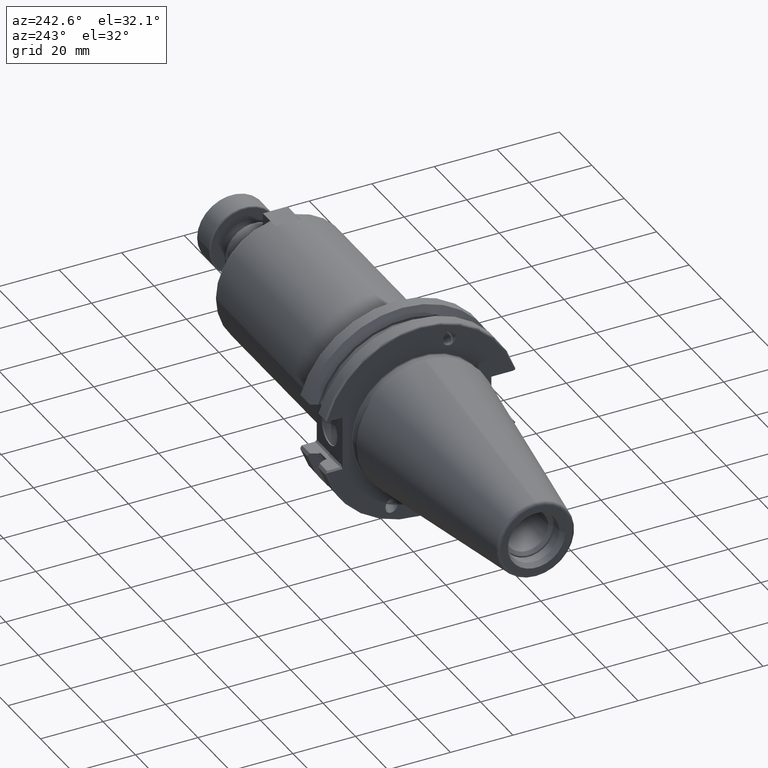
[diagram: clean part render]
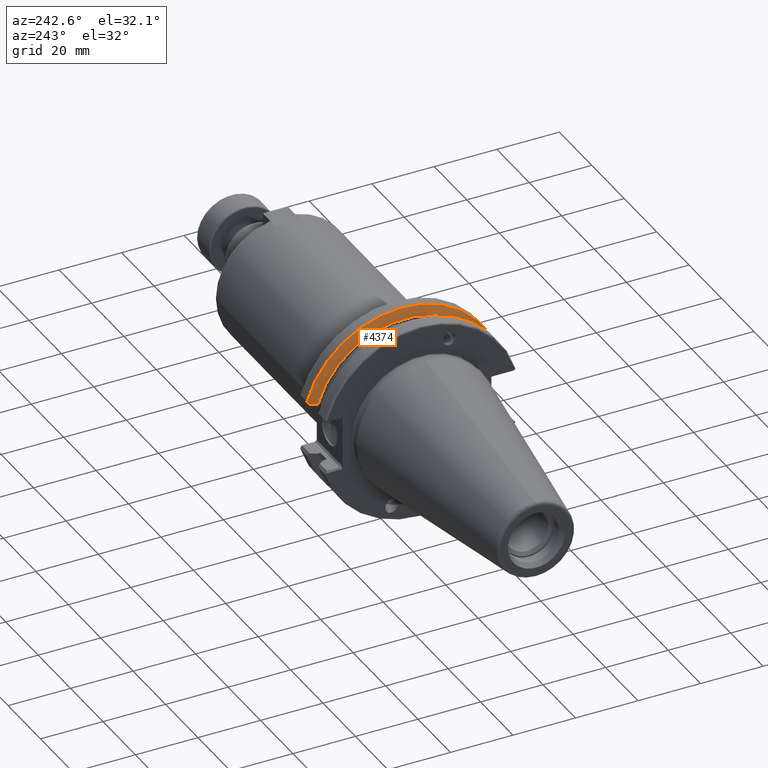
[diagram: same view with one face highlighted and labeled with its STEP entity id]
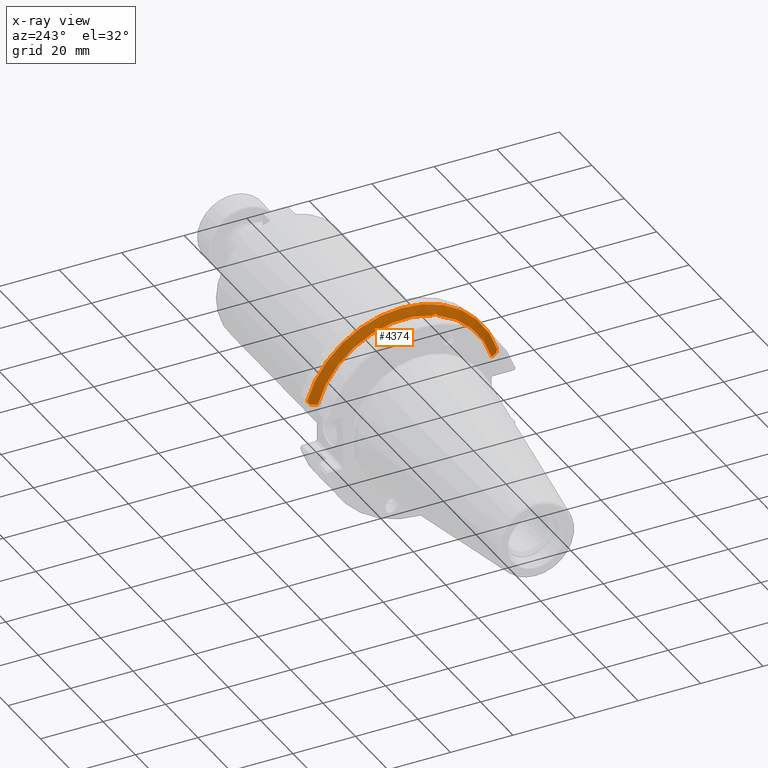
[diagram: x-ray of the same camera — body ghosted, the highlighted face saturated]
A machine part, auxiliary view. The second image highlights one B-rep face of the part: STEP entity #4374.
The next image is the same camera in x-ray: the body ghosted, the highlighted face saturated — about 0% of this face is hidden behind the body in this view.
In plain terms, the highlighted conical surface has half-angle 60 deg.
Its self-contained STEP definition (entity closure, byte-faithful):
#1447=CARTESIAN_POINT('',(5.138503937008E-1,-3.581807719874E-1,
1.082607295565E0));
#1448=CARTESIAN_POINT('',(5.152023489081E-1,-3.618593761562E-1,
1.083856717456E0));
#1449=CARTESIAN_POINT('',(5.175127060876E-1,-3.690747423263E-1,
1.085657546070E0));
#1450=CARTESIAN_POINT('',(5.198054750627E-1,-3.792342131984E-1,
1.086357697339E0));
#1451=CARTESIAN_POINT('',(5.210019072345E-1,-3.888108001297E-1,
1.085168477998E0));
#1452=CARTESIAN_POINT('',(5.211165984197E-1,-3.974660836111E-1,
1.082238396118E0));
#1453=CARTESIAN_POINT('',(5.203165297109E-1,-4.049318023961E-1,
1.077985357403E0));
#1454=CARTESIAN_POINT('',(5.187669004976E-1,-4.114202140619E-1,
1.072650529643E0));
#1455=CARTESIAN_POINT('',(5.165557526184E-1,-4.170342531568E-1,
1.066367698244E0));
#1456=CARTESIAN_POINT('',(5.147943210808E-1,-4.200974010668E-1,
1.061878638779E0));
#1457=CARTESIAN_POINT('',(5.138503937008E-1,-4.215041657325E-1,
1.059559465109E0));
#1459=CARTESIAN_POINT('',(5.138503937008E-1,0.E0,0.E0));
#1460=DIRECTION('',(-1.E0,0.E0,0.E0));
#1461=DIRECTION('',(0.E0,-3.141052095374E-1,9.493881805360E-1));
#1462=AXIS2_PLACEMENT_3D('',#1459,#1460,#1461);
#1464=CARTESIAN_POINT('',(5.568724755720E-1,1.171265069796E0,
3.224409448819E-1));
#1465=CARTESIAN_POINT('',(5.519911533521E-1,1.162495847418E0,
3.224409448819E-1));
#1466=CARTESIAN_POINT('',(5.422957468916E-1,1.145064320097E0,
3.224409448819E-1));
#1467=CARTESIAN_POINT('',(5.279550499052E-1,1.119237932591E0,
3.224409448819E-1));
#1468=CARTESIAN_POINT('',(5.185293952008E-1,1.102233269689E0,
3.224409448819E-1));
#1469=CARTESIAN_POINT('',(5.138503937008E-1,1.093784192104E0,
3.224409448819E-1));
#1471=CARTESIAN_POINT('',(5.771735840551E-1,1.197670401482E0,
3.578904991948E-1));
#1472=CARTESIAN_POINT('',(5.737365059337E-1,1.193236042193E0,
3.519373052589E-1));
#1473=CARTESIAN_POINT('',(5.669156042159E-1,1.184400879147E0,
3.400759661938E-1));
#1474=CARTESIAN_POINT('',(5.602021249643E-1,1.175632572400E0,
3.283043827146E-1));
#1475=CARTESIAN_POINT('',(5.568724755720E-1,1.171265069796E0,
3.224409448819E-1));
#1477=CARTESIAN_POINT('',(5.771735840551E-1,0.E0,0.E0));
#1478=DIRECTION('',(1.E0,0.E0,0.E0));
#1479=DIRECTION('',(0.E0,9.581363211856E-1,2.863123993559E-1));
#1480=AXIS2_PLACEMENT_3D('',#1477,#1478,#1479);
#1482=CARTESIAN_POINT('',(5.568724755720E-1,-1.171265069796E0,
3.224409448819E-1));
#1483=CARTESIAN_POINT('',(5.601806936951E-1,-1.175604460995E0,
3.282666427306E-1));
#1484=CARTESIAN_POINT('',(5.668724381452E-1,-1.184344738584E0,
3.400005966455E-1));
#1485=CARTESIAN_POINT('',(5.737147794958E-1,-1.193208011747E0,
3.518996739647E-1));
#1486=CARTESIAN_POINT('',(5.771735840551E-1,-1.197670401482E0,
3.578904991948E-1));
#1488=CARTESIAN_POINT('',(5.138503937008E-1,-1.093784192104E0,
3.224409448819E-1));
#1489=CARTESIAN_POINT('',(5.185279044242E-1,-1.102230577728E0,
3.224409448819E-1));
#1490=CARTESIAN_POINT('',(5.279515669858E-1,-1.119231653199E0,
3.224409448819E-1));
#1491=CARTESIAN_POINT('',(5.422922359125E-1,-1.145058004023E0,
3.224409448819E-1));
#1492=CARTESIAN_POINT('',(5.519896469594E-1,-1.162493141206E0,
3.224409448819E-1));
#1493=CARTESIAN_POINT('',(5.568724755720E-1,-1.171265069796E0,
3.224409448819E-1));
#1495=CARTESIAN_POINT('',(5.138503937008E-1,0.E0,0.E0));
#1496=DIRECTION('',(-1.E0,0.E0,0.E0));
#1497=DIRECTION('',(0.E0,-9.591897156931E-1,2.827633096930E-1));
#1498=AXIS2_PLACEMENT_3D('',#1495,#1496,#1497);
#2196=CARTESIAN_POINT('',(5.138503937008E-1,1.093784192104E0,
3.224409448819E-1));
#2197=VERTEX_POINT('',#2196);
#2212=CARTESIAN_POINT('',(5.138503937008E-1,-1.093784192104E0,
3.224409448819E-1));
#2213=VERTEX_POINT('',#2212);
#2218=VERTEX_POINT('',#1471);
#2219=VERTEX_POINT('',#1475);
#2228=VERTEX_POINT('',#1482);
#2229=VERTEX_POINT('',#1486);
#2448=CARTESIAN_POINT('',(5.138503937008E-1,-4.215041657325E-1,
1.059559465109E0));
#2449=VERTEX_POINT('',#2448);
#2450=CARTESIAN_POINT('',(5.138503937008E-1,-3.581807719874E-1,
1.082607295565E0));
#2451=VERTEX_POINT('',#2450);
#4356=CARTESIAN_POINT('',(5.455119888780E-1,0.E0,0.E0));
#4357=DIRECTION('',(1.E0,0.E0,0.E0));
#4358=DIRECTION('',(0.E0,0.E0,1.E0));
#4359=AXIS2_PLACEMENT_3D('',#4356,#4357,#4358);
#4360=CONICAL_SURFACE('',#4359,1.195160508504E0,6.E1);
#4361=ORIENTED_EDGE('',*,*,#3093,.F.);
#4363=ORIENTED_EDGE('',*,*,#4362,.T.);
#4364=ORIENTED_EDGE('',*,*,#4270,.F.);
#4365=ORIENTED_EDGE('',*,*,#4296,.F.);
#4367=ORIENTED_EDGE('',*,*,#4366,.T.);
#4368=ORIENTED_EDGE('',*,*,#4323,.F.);
#4369=ORIENTED_EDGE('',*,*,#4066,.F.);
#4371=ORIENTED_EDGE('',*,*,#4370,.T.);
#4372=EDGE_LOOP('',(#4361,#4363,#4364,#4365,#4367,#4368,#4369,#4371));
#4373=FACE_OUTER_BOUND('',#4372,.F.);
#4374=ADVANCED_FACE('',(#4373),#4360,.T.);
#1458=B_SPLINE_CURVE_WITH_KNOTS('',3,(#1447,#1448,#1449,#1450,#1451,#1452,#1453,
#1454,#1455,#1456,#1457),.UNSPECIFIED.,.F.,.F.,(4,1,1,1,1,1,1,1,4),(0.E0,
1.25E-1,2.5E-1,3.75E-1,5.E-1,6.25E-1,7.5E-1,8.75E-1,1.E0),.UNSPECIFIED.);
#1463=CIRCLE('',#1462,1.140321017009E0);
#1470=B_SPLINE_CURVE_WITH_KNOTS('',3,(#1464,#1465,#1466,#1467,#1468,#1469),
.UNSPECIFIED.,.F.,.F.,(4,1,1,4),(0.E0,3.333333333333E-1,6.666666666667E-1,1.E0),
.UNSPECIFIED.);
#1476=B_SPLINE_CURVE_WITH_KNOTS('',3,(#1471,#1472,#1473,#1474,#1475),
.UNSPECIFIED.,.F.,.F.,(4,1,4),(0.E0,5.E-1,1.E0),.UNSPECIFIED.);
#1481=CIRCLE('',#1480,1.25E0);
#1487=B_SPLINE_CURVE_WITH_KNOTS('',3,(#1482,#1483,#1484,#1485,#1486),
.UNSPECIFIED.,.F.,.F.,(4,1,4),(0.E0,5.E-1,1.E0),.UNSPECIFIED.);
#1494=B_SPLINE_CURVE_WITH_KNOTS('',3,(#1488,#1489,#1490,#1491,#1492,#1493),
.UNSPECIFIED.,.F.,.F.,(4,1,1,4),(0.E0,3.333333333333E-1,6.666666666667E-1,1.E0),
.UNSPECIFIED.);
#1499=CIRCLE('',#1498,1.140321017009E0);
#3093=EDGE_CURVE('',#2451,#2449,#1458,.T.);
#4066=EDGE_CURVE('',#2213,#2228,#1494,.T.);
#4270=EDGE_CURVE('',#2219,#2197,#1470,.T.);
#4296=EDGE_CURVE('',#2218,#2219,#1476,.T.);
#4323=EDGE_CURVE('',#2228,#2229,#1487,.T.);
#4362=EDGE_CURVE('',#2451,#2197,#1463,.T.);
#4366=EDGE_CURVE('',#2218,#2229,#1481,.T.);
#4370=EDGE_CURVE('',#2213,#2449,#1499,.T.);